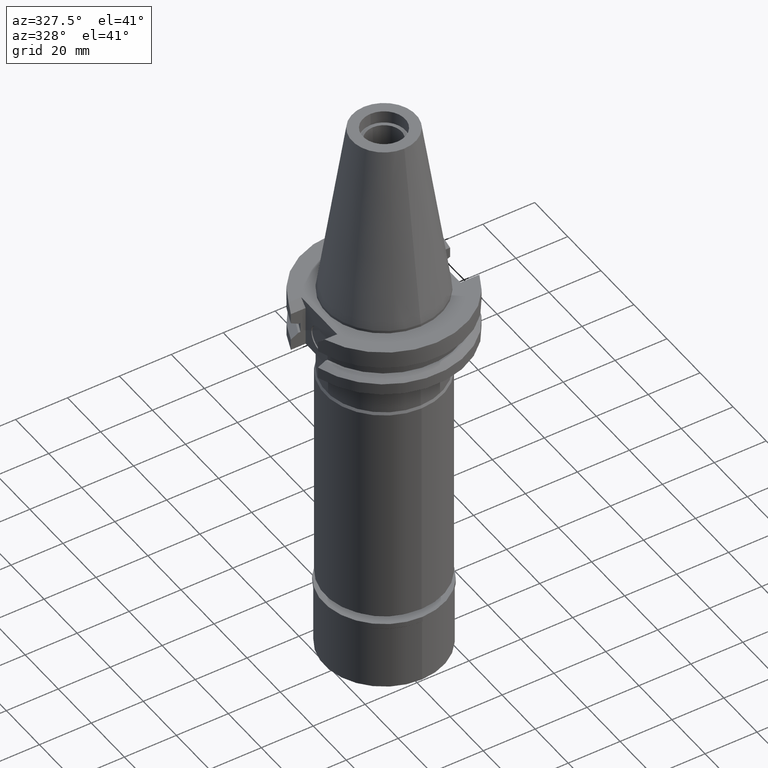
[diagram: clean part render]
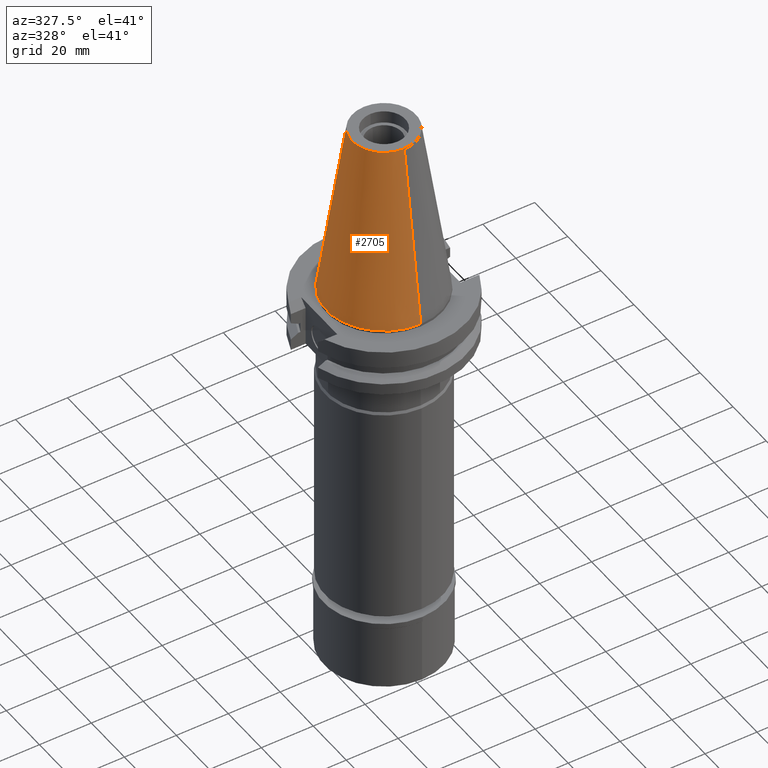
[diagram: same view with one face highlighted and labeled with its STEP entity id]
A machine part, auxiliary view. The second image highlights one B-rep face of the part: STEP entity #2705.
In plain terms, the highlighted conical surface has half-angle 8.297 deg.
Its self-contained STEP definition (entity closure, byte-faithful):
#3 = VERTEX_POINT ( 'NONE', #1550 ) ;
#80 = ORIENTED_EDGE ( 'NONE', *, *, #409, .F. ) ;
#203 = VECTOR ( 'NONE', #1015, 1000.000000000000114 ) ;
#266 = VERTEX_POINT ( 'NONE', #2427 ) ;
#368 = VERTEX_POINT ( 'NONE', #1780 ) ;
#409 = EDGE_CURVE ( 'NONE', #3031, #266, #2539, .T. ) ;
#419 = VECTOR ( 'NONE', #1032, 1000.000000000000114 ) ;
#750 = EDGE_LOOP ( 'NONE', ( #1901, #80, #2105, #1761 ) ) ;
#891 = EDGE_CURVE ( 'NONE', #3, #368, #2757, .T. ) ;
#930 = DIRECTION ( 'NONE',  ( 0.0000000000000000000, -1.000000000000000000, 0.0000000000000000000 ) ) ;
#1015 = DIRECTION ( 'NONE',  ( 0.0000000000000000000, 0.1443069799456937474, -0.9895329683941577192 ) ) ;
#1032 = DIRECTION ( 'NONE',  ( 0.0000000000000000000, -0.1443069799456937474, -0.9895329683941577192 ) ) ;
#1041 = CIRCLE ( 'NONE', #1358, 22.22500000000000142 ) ;
#1095 = CONICAL_SURFACE ( 'NONE', #3120, 17.24843444035000317, 0.1448125860318199565 ) ;
#1125 = DIRECTION ( 'NONE',  ( 0.0000000000000000000, -1.000000000000000000, 0.0000000000000000000 ) ) ;
#1269 = CARTESIAN_POINT ( 'NONE',  ( 0.0000000000000000000, -12.27186888070000137, 68.25000000000000000 ) ) ;
#1358 = AXIS2_PLACEMENT_3D ( 'NONE', #2121, #2107, #1880 ) ;
#1395 = FACE_OUTER_BOUND ( 'NONE', #750, .T. ) ;
#1550 = CARTESIAN_POINT ( 'NONE',  ( 0.0000000000000000000, 12.27186888070000137, 68.25000000000000000 ) ) ;
#1581 = AXIS2_PLACEMENT_3D ( 'NONE', #3144, #2662, #1125 ) ;
#1695 = CARTESIAN_POINT ( 'NONE',  ( 0.0000000000000000000, 1.642557519355999895E-14, 34.12500000000000000 ) ) ;
#1761 = ORIENTED_EDGE ( 'NONE', *, *, #891, .T. ) ;
#1780 = CARTESIAN_POINT ( 'NONE',  ( 0.0000000000000000000, 22.22500000000000142, -1.989519660127999812E-13 ) ) ;
#1880 = DIRECTION ( 'NONE',  ( 0.0000000000000000000, -1.000000000000000000, 0.0000000000000000000 ) ) ;
#1885 = DIRECTION ( 'NONE',  ( 0.0000000000000000000, 0.0000000000000000000, -1.000000000000000000 ) ) ;
#1901 = ORIENTED_EDGE ( 'NONE', *, *, #2150, .F. ) ;
#2036 = CARTESIAN_POINT ( 'NONE',  ( 0.0000000000000000000, 12.27186888070000137, 68.25000000000000000 ) ) ;
#2105 = ORIENTED_EDGE ( 'NONE', *, *, #2721, .T. ) ;
#2107 = DIRECTION ( 'NONE',  ( 0.0000000000000000000, 0.0000000000000000000, -1.000000000000000000 ) ) ;
#2121 = CARTESIAN_POINT ( 'NONE',  ( 0.0000000000000000000, 1.642557519355999895E-14, -3.126388037344000570E-13 ) ) ;
#2150 = EDGE_CURVE ( 'NONE', #266, #368, #1041, .T. ) ;
#2258 = CIRCLE ( 'NONE', #1581, 12.27186888070000137 ) ;
#2427 = CARTESIAN_POINT ( 'NONE',  ( 0.0000000000000000000, -22.22500000000000142, -1.989519660127999812E-13 ) ) ;
#2539 = LINE ( 'NONE', #1269, #419 ) ;
#2662 = DIRECTION ( 'NONE',  ( 0.0000000000000000000, 0.0000000000000000000, -1.000000000000000000 ) ) ;
#2705 = ADVANCED_FACE ( 'NONE', ( #1395 ), #1095, .T. ) ;
#2721 = EDGE_CURVE ( 'NONE', #3031, #3, #2258, .T. ) ;
#2757 = LINE ( 'NONE', #2036, #203 ) ;
#2813 = CARTESIAN_POINT ( 'NONE',  ( 0.0000000000000000000, -12.27186888070000137, 68.25000000000000000 ) ) ;
#3031 = VERTEX_POINT ( 'NONE', #2813 ) ;
#3120 = AXIS2_PLACEMENT_3D ( 'NONE', #1695, #1885, #930 ) ;
#3144 = CARTESIAN_POINT ( 'NONE',  ( 0.0000000000000000000, 1.642557519355999895E-14, 68.25000000000000000 ) ) ;